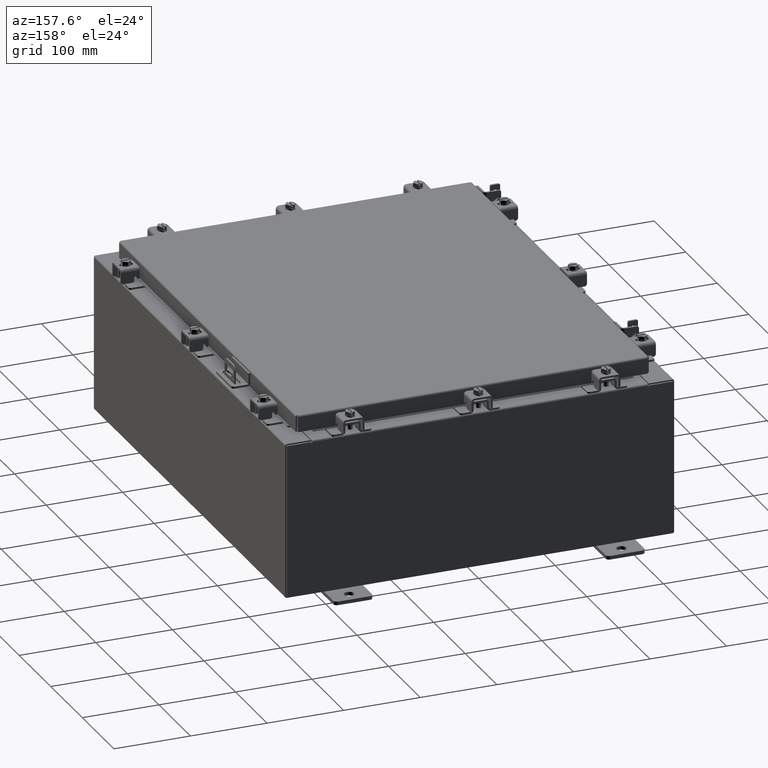
[diagram: clean part render]
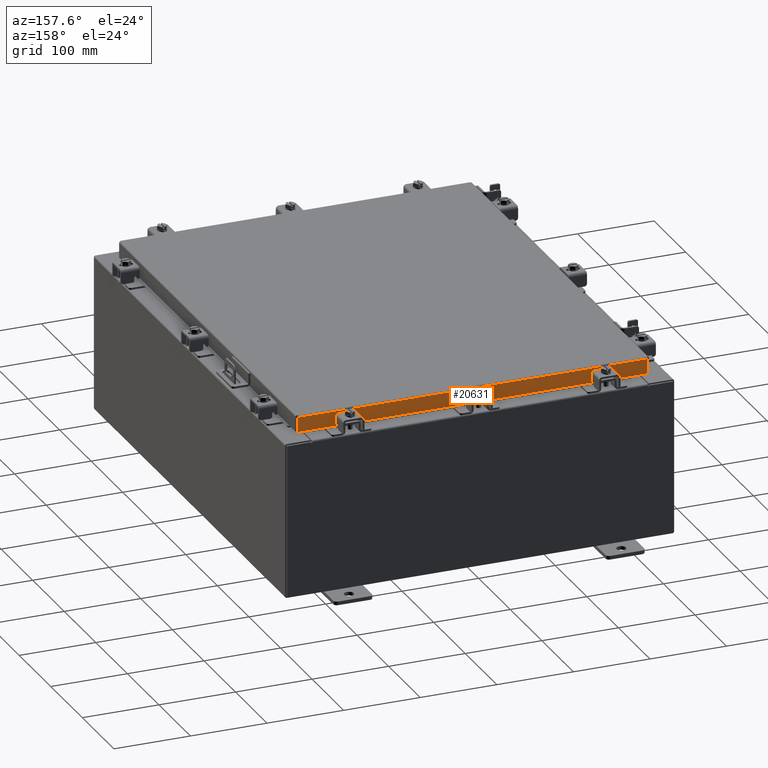
[diagram: same view with one face highlighted and labeled with its STEP entity id]
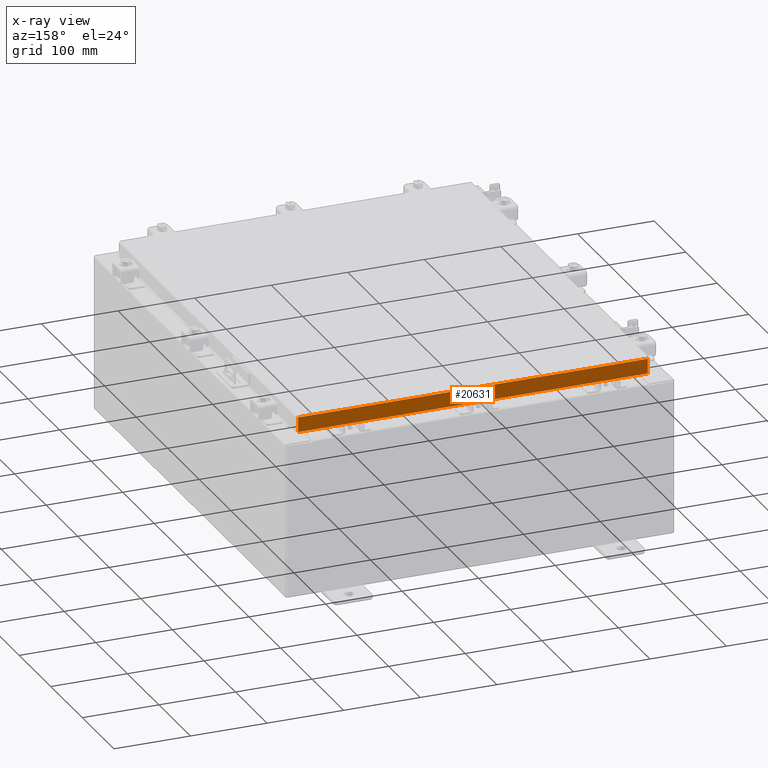
[diagram: x-ray of the same camera — body ghosted, the highlighted face saturated]
A machine part, auxiliary view. The second image highlights one B-rep face of the part: STEP entity #20631.
The next image is the same camera in x-ray: the body ghosted, the highlighted face saturated — about 0% of this face is hidden behind the body in this view.
In plain terms, the highlighted planar face has unit normal (0, -1, -0).
Its self-contained STEP definition (entity closure, byte-faithful):
#621 = DIRECTION ( 'NONE',  ( 3.605222026166233900E-031, -1.000000000000000000, -2.818880942772351900E-015 ) ) ;
#755 = LINE ( 'NONE', #2068, #19254 ) ;
#1551 = ORIENTED_EDGE ( 'NONE', *, *, #22524, .F. ) ;
#2022 = EDGE_CURVE ( 'NONE', #14057, #2669, #20984, .T. ) ;
#2068 = CARTESIAN_POINT ( 'NONE',  ( -8.989157864376267100, 11.09399999999999900, -0.07469999999999978000 ) ) ;
#2129 = VERTEX_POINT ( 'NONE', #15567 ) ;
#2176 = LINE ( 'NONE', #16188, #20096 ) ;
#2494 = AXIS2_PLACEMENT_3D ( 'NONE', #14452, #621, #12799 ) ;
#2667 = VERTEX_POINT ( 'NONE', #12079 ) ;
#2669 = VERTEX_POINT ( 'NONE', #10287 ) ;
#3020 = VECTOR ( 'NONE', #10158, 39.37007874015748100 ) ;
#3299 = FACE_OUTER_BOUND ( 'NONE', #12595, .T. ) ;
#3776 = ORIENTED_EDGE ( 'NONE', *, *, #13755, .F. ) ;
#4231 = EDGE_CURVE ( 'NONE', #2129, #2667, #755, .T. ) ;
#4818 = ORIENTED_EDGE ( 'NONE', *, *, #20974, .F. ) ;
#5164 = VECTOR ( 'NONE', #13041, 39.37007874015748100 ) ;
#6537 = LINE ( 'NONE', #20622, #3020 ) ;
#8219 = DIRECTION ( 'NONE',  ( 1.000000000000000000, -4.379057701015054300E-047, 1.278955053213606700E-016 ) ) ;
#8709 = CARTESIAN_POINT ( 'NONE',  ( -8.239157864376267100, 11.09399999999999900, -0.8500000000000046400 ) ) ;
#9923 = CARTESIAN_POINT ( 'NONE',  ( -9.077999999999999400, 11.09400000000000100, -0.8500000000000019800 ) ) ;
#10158 = DIRECTION ( 'NONE',  ( -1.000000000000000000, -3.605222026166234800E-031, -9.826997386333231700E-046 ) ) ;
#10287 = CARTESIAN_POINT ( 'NONE',  ( 8.989157864376267100, 11.09400000000000100, -0.8499999999999996400 ) ) ;
#10499 = CARTESIAN_POINT ( 'NONE',  ( 8.989157864376267100, 11.09399999999999900, -0.08770000000000007000 ) ) ;
#11011 = PLANE ( 'NONE',  #2494 ) ;
#11245 = CARTESIAN_POINT ( 'NONE',  ( -8.239157864376267100, 11.09399999999999900, -0.8500000000000046400 ) ) ;
#12079 = CARTESIAN_POINT ( 'NONE',  ( -8.989157864376267100, 11.09400000000000100, -0.8500000000000019800 ) ) ;
#12460 = CARTESIAN_POINT ( 'NONE',  ( 8.239157864376267100, 11.09399999999999900, -0.8500000000000046400 ) ) ;
#12595 = EDGE_LOOP ( 'NONE', ( #4818, #17889, #12890, #1551, #3776, #18167 ) ) ;
#12778 = DIRECTION ( 'NONE',  ( 0.0000000000000000000, 2.818880942772351900E-015, -1.000000000000000000 ) ) ;
#12799 = DIRECTION ( 'NONE',  ( 0.0000000000000000000, 2.818880942772351900E-015, -1.000000000000000000 ) ) ;
#12890 = ORIENTED_EDGE ( 'NONE', *, *, #2022, .F. ) ;
#13041 = DIRECTION ( 'NONE',  ( 1.000000000000000000, -0.0000000000000000000, -0.0000000000000000000 ) ) ;
#13421 = LINE ( 'NONE', #9923, #15340 ) ;
#13755 = EDGE_CURVE ( 'NONE', #2667, #15480, #13421, .T. ) ;
#13835 = LINE ( 'NONE', #11245, #5164 ) ;
#14057 = VERTEX_POINT ( 'NONE', #12460 ) ;
#14452 = CARTESIAN_POINT ( 'NONE',  ( -3.999633315828819900E-030, 11.09399999999999900, 3.153347883512804900E-014 ) ) ;
#15340 = VECTOR ( 'NONE', #8219, 39.37007874015748100 ) ;
#15480 = VERTEX_POINT ( 'NONE', #8709 ) ;
#15567 = CARTESIAN_POINT ( 'NONE',  ( -8.989157864376267100, 11.09399999999999900, -0.08770000000000007000 ) ) ;
#16188 = CARTESIAN_POINT ( 'NONE',  ( 8.989157864376267100, 11.09399999999999900, 3.153347883512804900E-014 ) ) ;
#16354 = VECTOR ( 'NONE', #17477, 39.37007874015748100 ) ;
#16986 = DIRECTION ( 'NONE',  ( -0.0000000000000000000, 2.818880942772351900E-015, -1.000000000000000000 ) ) ;
#17477 = DIRECTION ( 'NONE',  ( 1.000000000000000000, -4.379057701015054300E-047, 1.278955053213606700E-016 ) ) ;
#17889 = ORIENTED_EDGE ( 'NONE', *, *, #21210, .T. ) ;
#18167 = ORIENTED_EDGE ( 'NONE', *, *, #4231, .F. ) ;
#19254 = VECTOR ( 'NONE', #16986, 39.37007874015748100 ) ;
#20096 = VECTOR ( 'NONE', #12778, 39.37007874015748100 ) ;
#20622 = CARTESIAN_POINT ( 'NONE',  ( -9.077999999999999400, 11.09399999999999900, -0.08770000000000007000 ) ) ;
#20631 = ADVANCED_FACE ( 'NONE', ( #3299 ), #11011, .F. ) ;
#20974 = EDGE_CURVE ( 'NONE', #22202, #2129, #6537, .T. ) ;
#20984 = LINE ( 'NONE', #22495, #16354 ) ;
#21210 = EDGE_CURVE ( 'NONE', #22202, #2669, #2176, .T. ) ;
#22202 = VERTEX_POINT ( 'NONE', #10499 ) ;
#22495 = CARTESIAN_POINT ( 'NONE',  ( -9.077999999999999400, 11.09400000000000100, -0.8500000000000019800 ) ) ;
#22524 = EDGE_CURVE ( 'NONE', #15480, #14057, #13835, .T. ) ;